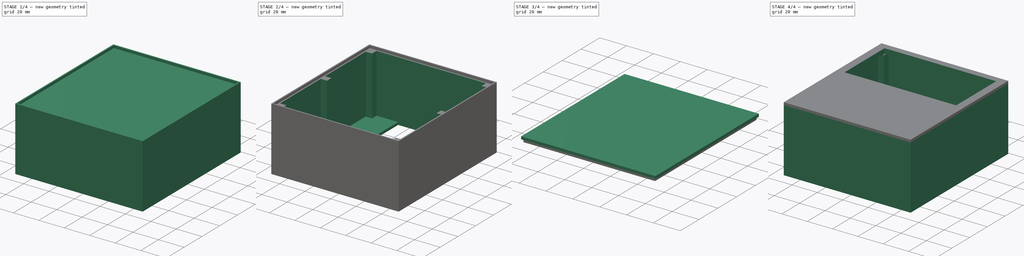
[diagram: build sequence overview — one tinted view per stage of 4, left to right]
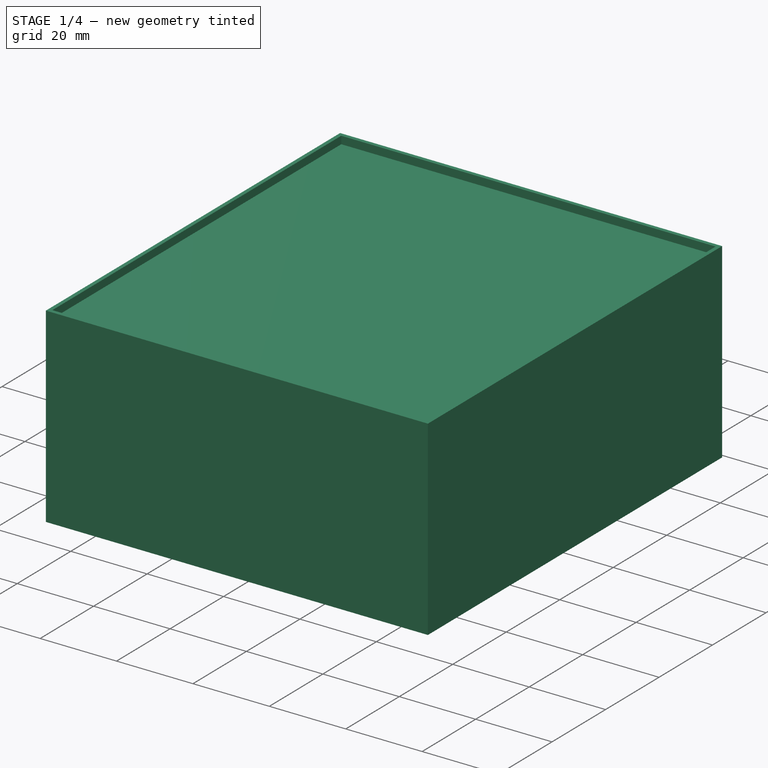
[diagram: stage 1 of 4 — iso view after this stage's code; geometry added in this stage tinted green]
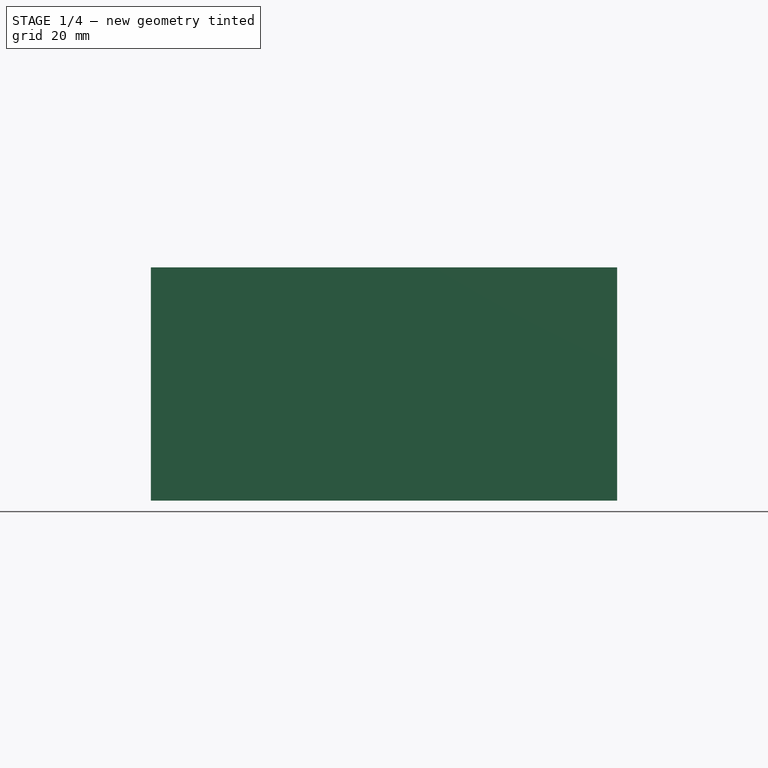
[diagram: stage 1 of 4 — front view after this stage's code; geometry added in this stage tinted green]
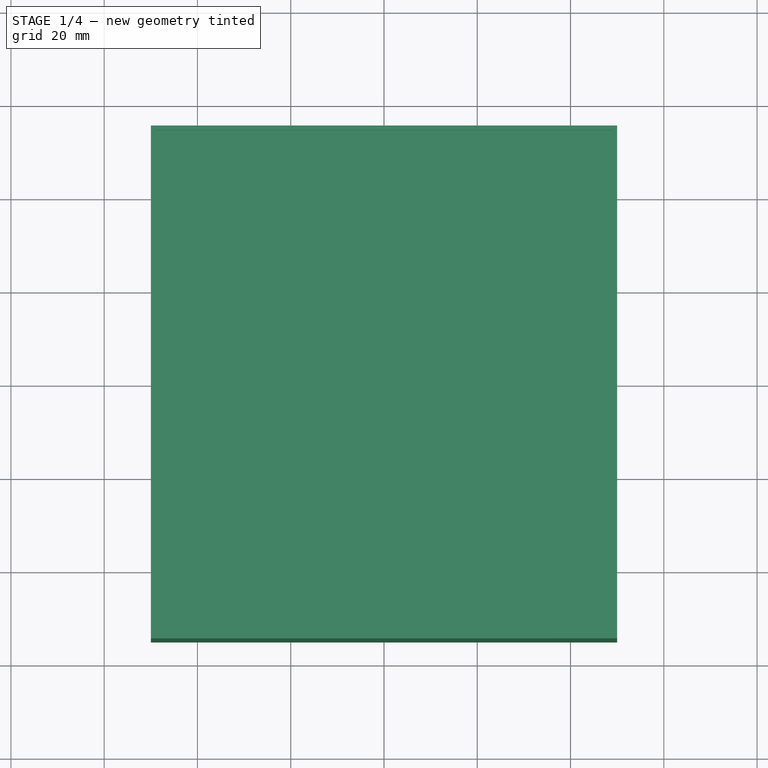
[diagram: stage 1 of 4 — top view after this stage's code; geometry added in this stage tinted green]
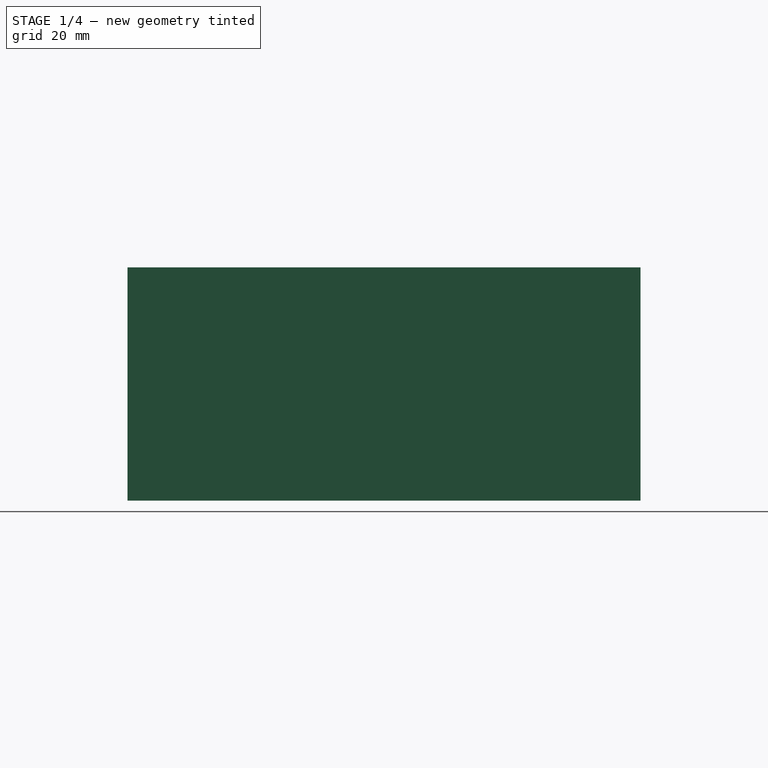
[diagram: stage 1 of 4 — right view after this stage's code; geometry added in this stage tinted green]
FCSTD DOCUMENT  (FreeCAD 0.16R)
Label: Sonoffcase
License: All rights reserved
LicenseURL: http://en.wikipedia.org/wiki/All_rights_reserved
objects: Sketcher::SketchObject×8, PartDesign::Pocket×5, PartDesign::Pad×3, Part::Cut×1
note: 25 computed .brp shape members not serialized (recipe doc carries the construction recipe); baked Part::Feature solids carry a one-line shape summary decoded from their .brp

FEATURE [Sketcher::SketchObject] Sketch
  sketch-geometry (4):
    g0: LineSegment StartX=-50 StartY=55 StartZ=0 EndX=50 EndY=55 EndZ=0
    g1: LineSegment StartX=50 StartY=55 StartZ=0 EndX=50 EndY=-55 EndZ=0
    g2: LineSegment StartX=50 StartY=-55 StartZ=0 EndX=-50 EndY=-55 EndZ=0
    g3: LineSegment StartX=-50 StartY=-55 StartZ=0 EndX=-50 EndY=55 EndZ=0
  constraints (11):
    c: Coincident(g0,g1)
    c: Coincident(g1,g2)
    c: Coincident(g2,g3)
    c: Coincident(g3,g0)
    c: Horizontal(g0)
    c: Horizontal(g2)
    c: Vertical(g1)
    c: Vertical(g3)
    c: DistanceX(g0,g0) = 100
    c: DistanceY(g3,g3) = 110
    c: Symmetric(g2,g0,g-1)
FEATURE [PartDesign::Pad] Pad
  Length = 50
  Length2 = 100
  Sketch = -> Sketch
  Type = 0
FEATURE [Sketcher::SketchObject] Sketch001
  Placement = pos=(0,0,50) rot=(0,0,1;0rad)
  Support = -> Pad [Face6]
  sketch-geometry (4):
    g0: LineSegment StartX=-49 StartY=54 StartZ=0 EndX=49 EndY=54 EndZ=0
    g1: LineSegment StartX=49 StartY=54 StartZ=0 EndX=49 EndY=-54 EndZ=0
    g2: LineSegment StartX=49 StartY=-54 StartZ=0 EndX=-49 EndY=-54 EndZ=0
    g3: LineSegment StartX=-49 StartY=-54 StartZ=0 EndX=-49 EndY=54 EndZ=0
  constraints (11):
    c: Coincident(g0,g1)
    c: Coincident(g1,g2)
    c: Coincident(g2,g3)
    c: Coincident(g3,g0)
    c: Horizontal(g0)
    c: Horizontal(g2)
    c: Vertical(g1)
    c: Vertical(g3)
    c: DistanceX(g0,g0) = 98
    c: DistanceY(g3,g3) = 108
    c: Symmetric(g2,g0,g-1)
FEATURE [PartDesign::Pocket] Pocket
  Length = 2
  Sketch = -> Sketch001
  Type = 0
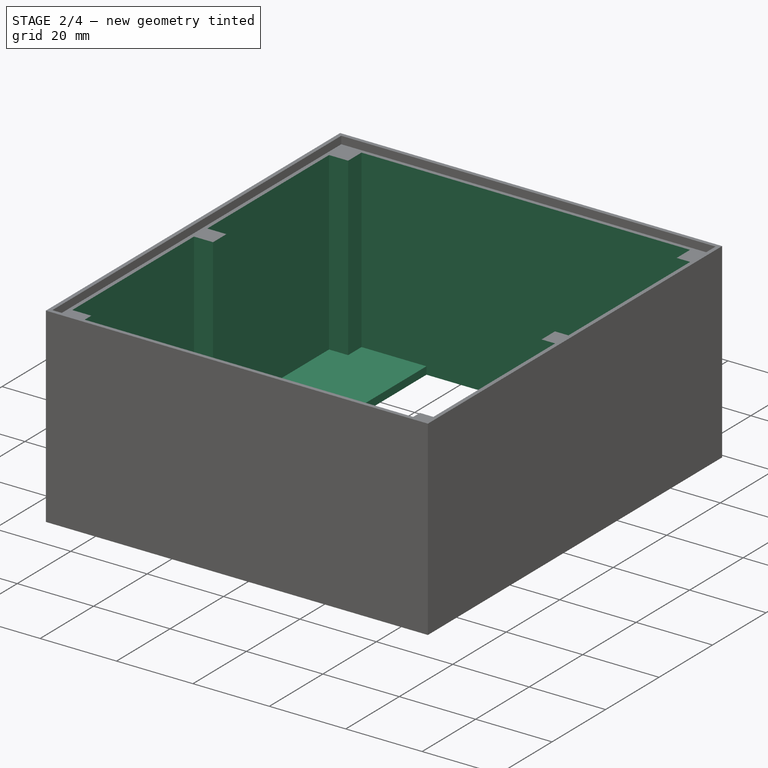
[diagram: stage 2 of 4 — iso view after this stage's code; geometry added in this stage tinted green]
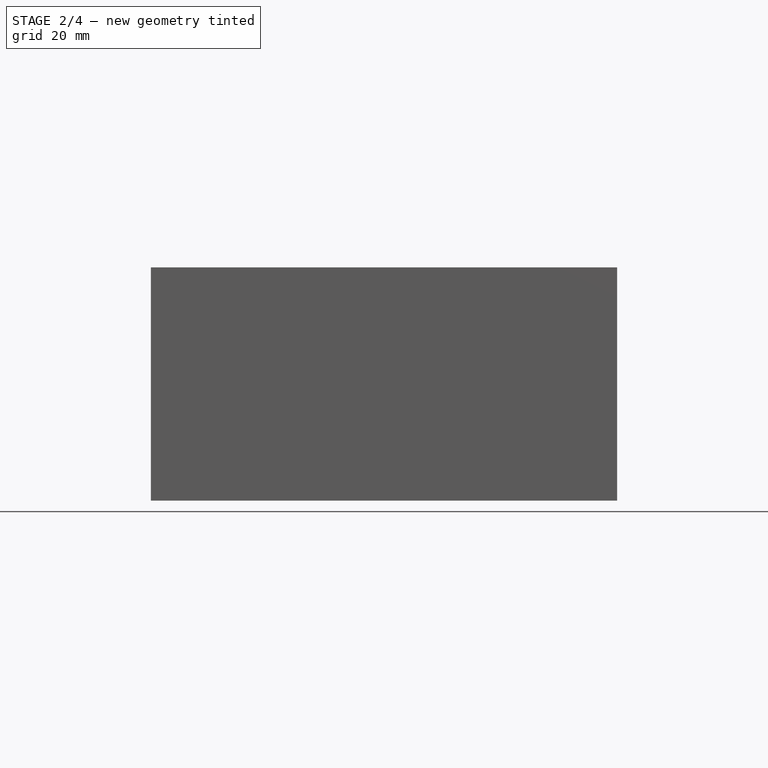
[diagram: stage 2 of 4 — front view after this stage's code; geometry added in this stage tinted green]
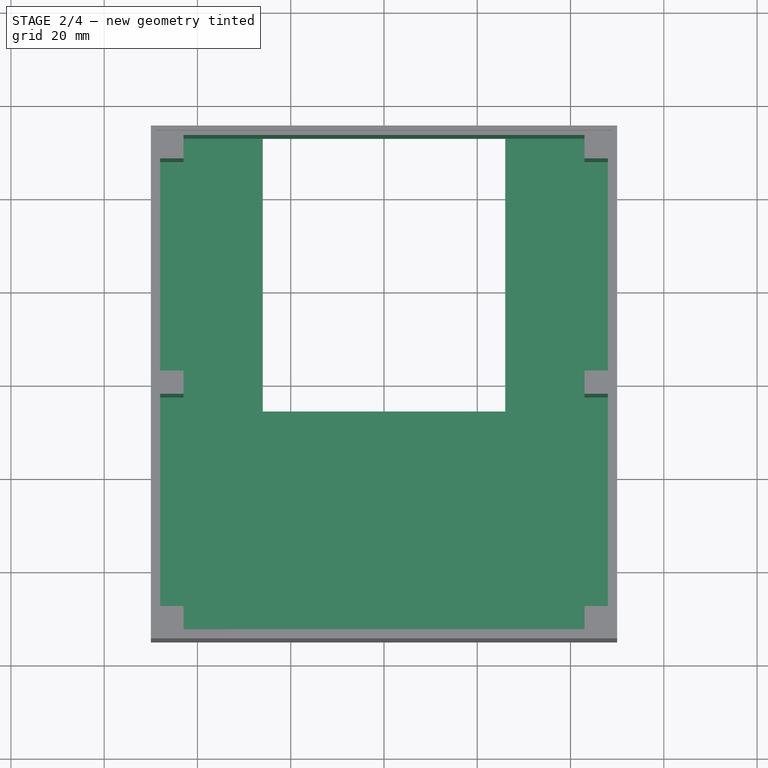
[diagram: stage 2 of 4 — top view after this stage's code; geometry added in this stage tinted green]
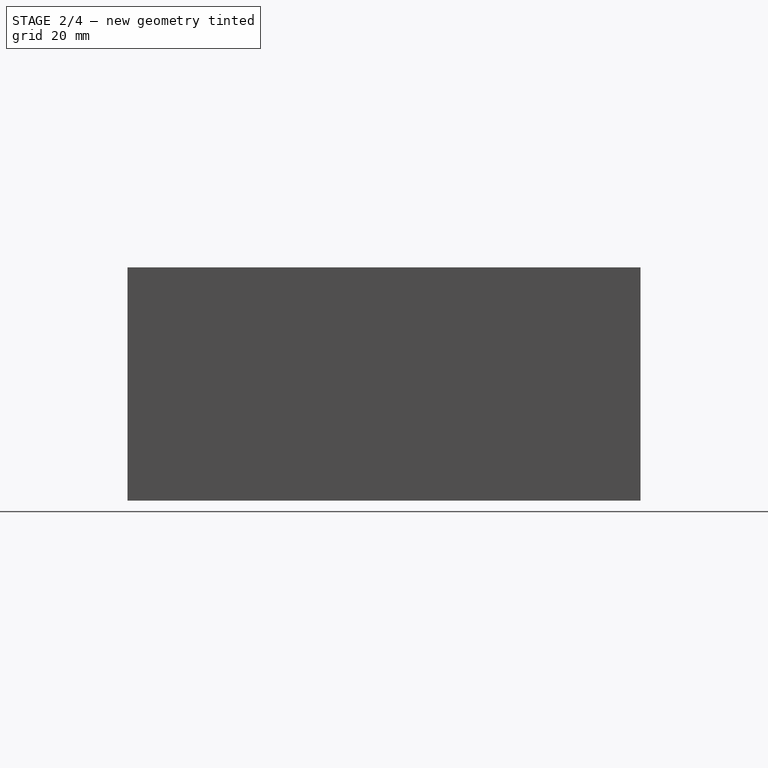
[diagram: stage 2 of 4 — right view after this stage's code; geometry added in this stage tinted green]
FEATURE [Sketcher::SketchObject] Sketch002
  Placement = pos=(0,0,48) rot=(0,0,1;0rad)
  Support = -> Pocket [Face11]
  sketch-geometry (27):
    g0: LineSegment StartX=-43 StartY=53 StartZ=0 EndX=43 EndY=53 EndZ=0
    g1: LineSegment StartX=48 StartY=48 StartZ=0 EndX=48 EndY=2.5 EndZ=0
    g2: LineSegment StartX=43 StartY=-53 StartZ=0 EndX=-43 EndY=-53 EndZ=0
    g3: LineSegment StartX=-48 StartY=-48 StartZ=0 EndX=-48 EndY=-2.5 EndZ=0
    g4: LineSegment StartX=-48 StartY=-48 StartZ=0 EndX=-43 EndY=-48 EndZ=0
    g5: LineSegment StartX=-43 StartY=-48 StartZ=0 EndX=-43 EndY=-53 EndZ=0
    g6: LineSegment StartX=-43 StartY=53 StartZ=0 EndX=-43 EndY=48 EndZ=0
    g7: LineSegment StartX=-43 StartY=48 StartZ=0 EndX=-48 EndY=48 EndZ=0
    g8: GeomPoint [constr] X=43 Y=53 Z=0
    g9: GeomPoint [constr] X=48 Y=48 Z=0
    g10: LineSegment StartX=43 StartY=53 StartZ=0 EndX=43 EndY=48 EndZ=0
    g11: LineSegment StartX=43 StartY=48 StartZ=0 EndX=48 EndY=48 EndZ=0
    g12: GeomPoint [constr] X=48 Y=-48 Z=0
    g13: LineSegment StartX=48 StartY=-48 StartZ=0 EndX=43 EndY=-48 EndZ=0
    g14: LineSegment StartX=43 StartY=-48 StartZ=0 EndX=43 EndY=-53 EndZ=0
    g15: GeomPoint [constr] X=48 Y=2.5 Z=0
    g16: GeomPoint [constr] X=48 Y=-2.5 Z=0
    g17: LineSegment StartX=48 StartY=2.5 StartZ=0 EndX=43 EndY=2.5 EndZ=0
    g18: LineSegment StartX=43 StartY=2.5 StartZ=0 EndX=43 EndY=-2.5 EndZ=0
    g19: LineSegment StartX=43 StartY=-2.5 StartZ=0 EndX=48 EndY=-2.5 EndZ=0
    g20: LineSegment StartX=48 StartY=-2.5 StartZ=0 EndX=48 EndY=-48 EndZ=0
    g21: GeomPoint [constr] X=-48 Y=2.5 Z=0
    g22: GeomPoint [constr] X=-48 Y=-2.5 Z=0
    g23: LineSegment StartX=-48 StartY=2.5 StartZ=0 EndX=-43 EndY=2.5 EndZ=0
    g24: LineSegment StartX=-43 StartY=2.5 StartZ=0 EndX=-43 EndY=-2.5 EndZ=0
    g25: LineSegment StartX=-43 StartY=-2.5 StartZ=0 EndX=-48 EndY=-2.5 EndZ=0
    g26: LineSegment StartX=-48 StartY=2.5 StartZ=0 EndX=-48 EndY=48 EndZ=0
  constraints (66):
    c: Horizontal(g0)
    c: Horizontal(g2)
    c: Vertical(g3)
    c: Coincident(g10,g8)
    c: Vertical(g10)
    c: Coincident(g10,g11)
    c: Coincident(g11,g9)
    c: Horizontal(g11)
    c: Coincident(g13,g12)
    c: Horizontal(g13)
    c: Coincident(g13,g14)
    c: DistanceX(g26,g1) = 96
    c: DistanceY(g2,g0) = 106
    c: Coincident(g14,g2)
    c: Vertical(g14)
    c: Symmetric(g6,g10,g-2)
    c: Symmetric(g6,g13,g-1)
    c: Equal(g6,g7)
    c: Equal(g7,g10)
    c: Equal(g10,g11)
    c: Equal(g11,g4)
    c: Equal(g4,g5)
    c: Equal(g5,g14)
    c: Equal(g14,g13)
    c: DistanceX(g7,g7) = 5
    c: Coincident(g0,g8)
    c: Coincident(g9,g1)
    c: Coincident(g26,g7)
    c: Coincident(g6,g0)
    c: Coincident(g6,g7)
    c: Horizontal(g7)
    c: Coincident(g3,g4)
    c: Coincident(g4,g5)
    c: Horizontal(g4)
    c: Coincident(g5,g2)
    c: Vertical(g5)
    c: Coincident(g20,g12)
    c: Coincident(g17,g15)
    c: Horizontal(g17)
    c: Coincident(g17,g18)
    c: Vertical(g18)
    c: Coincident(g18,g19)
    c: Coincident(g19,g16)
    c: Horizontal(g19)
    c: Coincident(g16,g20)
    c: Coincident(g23,g21)
    c: Horizontal(g23)
    c: Coincident(g23,g24)
    c: Vertical(g24)
    c: Coincident(g24,g25)
    c: Coincident(g25,g22)
    c: Horizontal(g25)
    c: PointOnObject(g3,g25)
    c: PointOnObject(g26,g23)
    c: Tangent(g3,g26)
    c: Equal(g23,g24)
    c: Equal(g24,g25)
    c: Equal(g25,g17)
    c: Equal(g17,g18)
    c: Equal(g18,g19)
    c: DistanceX(g17,g17) = 5
    c: Coincident(g1,g15)
    c: Symmetric(g23,g18,g-1)
    c: Symmetric(g24,g17,g-1)
    c: Symmetric(g1,g16,g-1)
    c: Coincident(g21,g26)
FEATURE [PartDesign::Pocket] Pocket001
  Length = 46
  Sketch = -> Sketch002
  Type = 0
FEATURE [Sketcher::SketchObject] Sketch003
  Placement = pos=(0,0,2) rot=(0,0,1;0rad)
  Support = -> Pocket001 [Face32]
  sketch-geometry (4):
    g0: LineSegment StartX=-26 StartY=53 StartZ=0 EndX=26 EndY=53 EndZ=0
    g1: LineSegment StartX=26 StartY=53 StartZ=0 EndX=26 EndY=-5.5 EndZ=0
    g2: LineSegment StartX=26 StartY=-5.5 StartZ=0 EndX=-26 EndY=-5.5 EndZ=0
    g3: LineSegment StartX=-26 StartY=-5.5 StartZ=0 EndX=-26 EndY=53 EndZ=0
  constraints (12):
    c: Coincident(g0,g1)
    c: Coincident(g1,g2)
    c: Coincident(g2,g3)
    c: Coincident(g3,g0)
    c: Horizontal(g0)
    c: Horizontal(g2)
    c: Vertical(g1)
    c: Vertical(g3)
    c: DistanceX(g0,g0) = 52
    c: DistanceY(g1,g1) = 58.5
    c: DistanceY(g-1,g0) = 53
    c: Symmetric(g2,g1,g-2)
FEATURE [PartDesign::Pocket] Pocket002
  Length = 5
  Sketch = -> Sketch003
  Type = 0
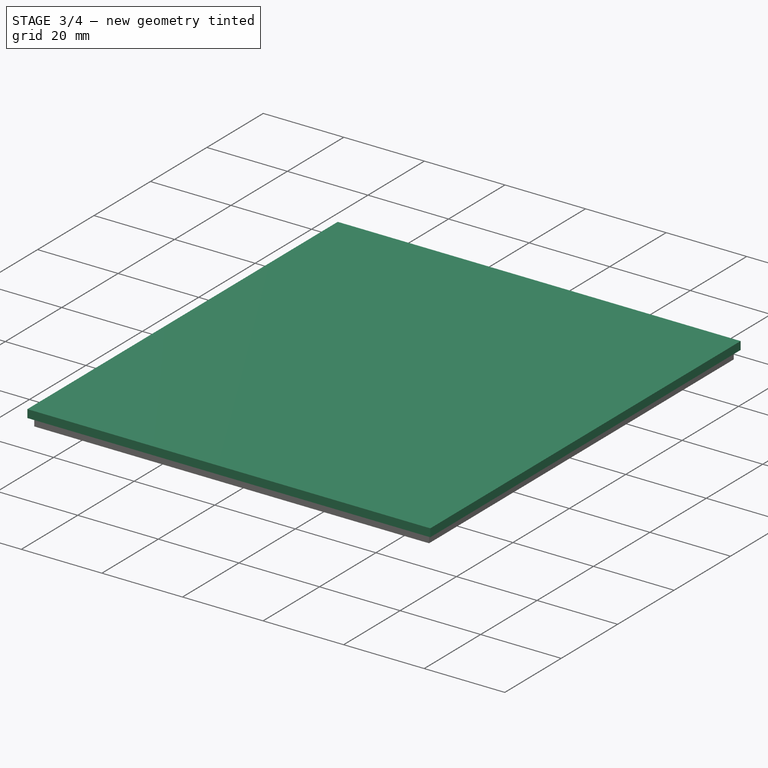
[diagram: stage 3 of 4 — iso view after this stage's code; geometry added in this stage tinted green]
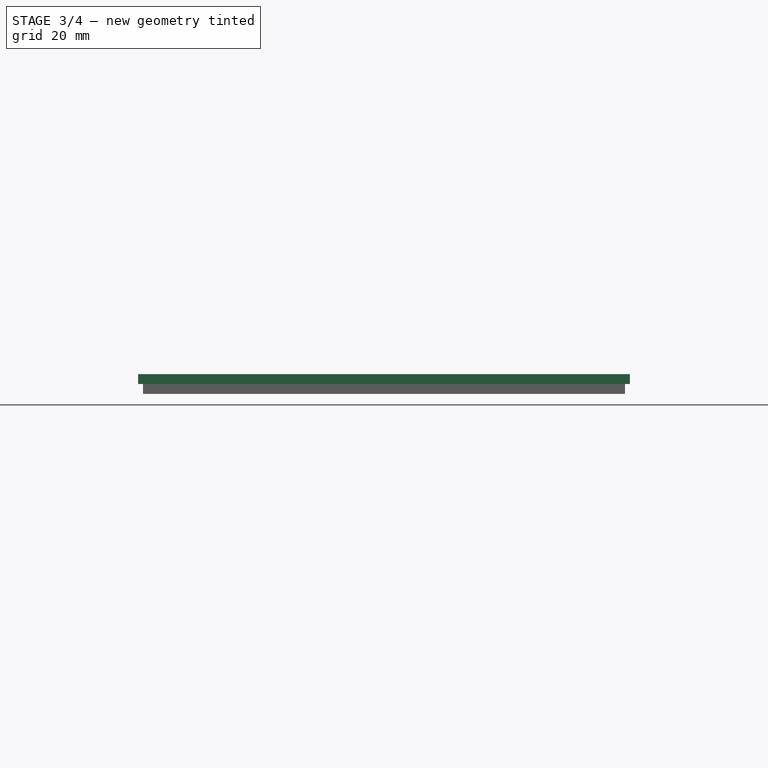
[diagram: stage 3 of 4 — front view after this stage's code; geometry added in this stage tinted green]
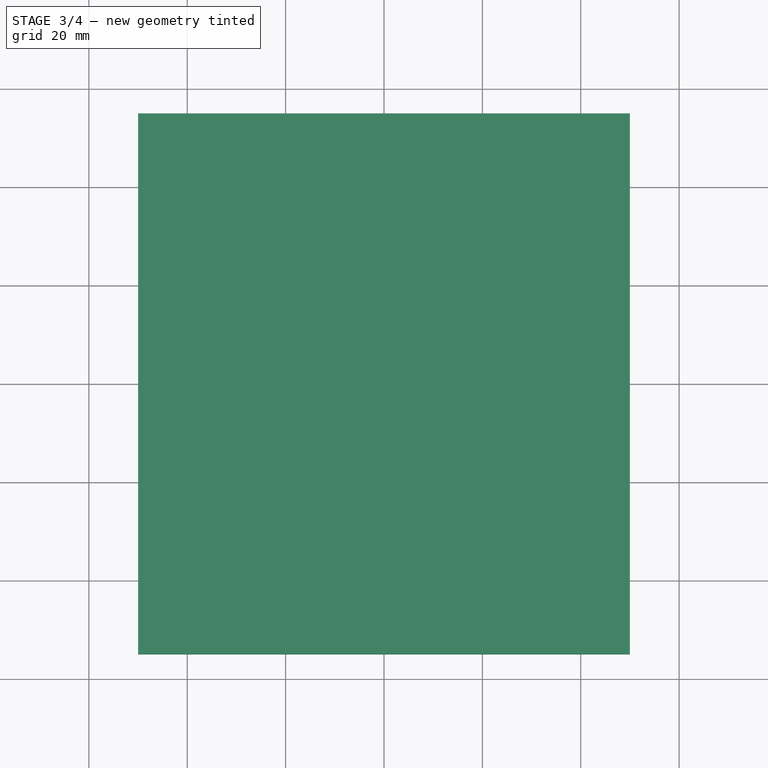
[diagram: stage 3 of 4 — top view after this stage's code; geometry added in this stage tinted green]
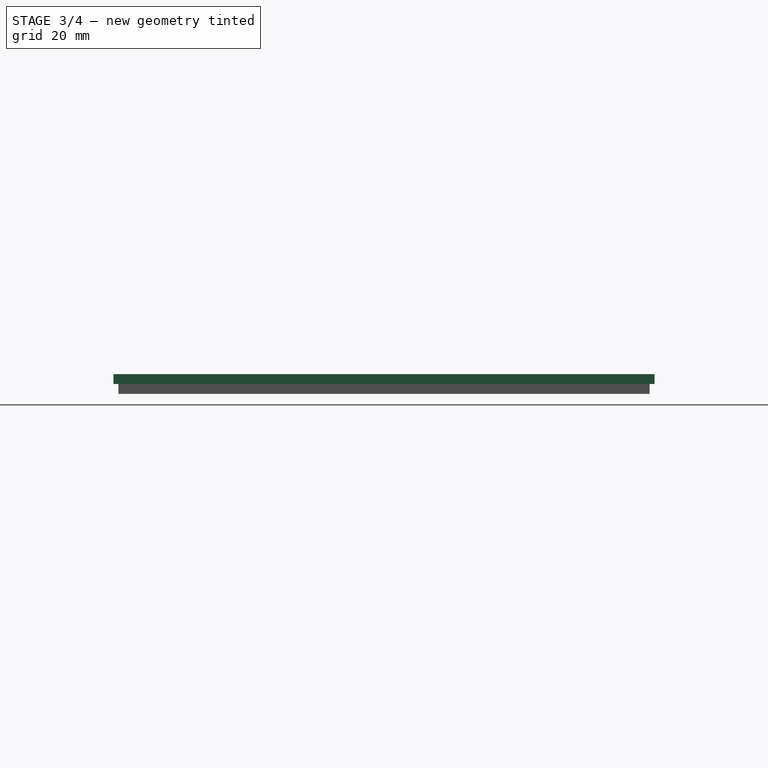
[diagram: stage 3 of 4 — right view after this stage's code; geometry added in this stage tinted green]
FEATURE [Sketcher::SketchObject] Sketch004
  Placement = pos=(0,0,2) rot=(0,0,1;0rad)
  Support = -> Pocket002 [Face16]
  sketch-geometry (8):
    g0: LineSegment StartX=-47.5 StartY=-6 StartZ=0 EndX=47.5 EndY=-6 EndZ=0
    g1: LineSegment StartX=47.5 StartY=-6 StartZ=0 EndX=47.5 EndY=-50 EndZ=0
    g2: LineSegment StartX=47.5 StartY=-50 StartZ=0 EndX=-47.5 EndY=-50 EndZ=0
    g3: LineSegment StartX=-47.5 StartY=-50 StartZ=0 EndX=-47.5 EndY=-6 EndZ=0
    g4: LineSegment StartX=-44.25 StartY=-8 StartZ=0 EndX=44.25 EndY=-8 EndZ=0
    g5: LineSegment StartX=44.25 StartY=-8 StartZ=0 EndX=44.25 EndY=-48 EndZ=0
    g6: LineSegment StartX=44.25 StartY=-48 StartZ=0 EndX=-44.25 EndY=-48 EndZ=0
    g7: LineSegment StartX=-44.25 StartY=-48 StartZ=0 EndX=-44.25 EndY=-8 EndZ=0
  constraints (24):
    c: Coincident(g0,g1)
    c: Coincident(g1,g2)
    c: Coincident(g2,g3)
    c: Coincident(g3,g0)
    c: Horizontal(g0)
    c: Horizontal(g2)
    c: Vertical(g1)
    c: Vertical(g3)
    c: Coincident(g4,g5)
    c: Coincident(g5,g6)
    c: Coincident(g6,g7)
    c: Coincident(g7,g4)
    c: Horizontal(g4)
    c: Horizontal(g6)
    c: Vertical(g5)
    c: Vertical(g7)
    c: DistanceX(g0,g0) = 95
    c: DistanceX(g4,g4) = 88.5
    c: DistanceY(g5,g5) = 40
    c: DistanceY(g1,g1) = 44
    c: Symmetric(g0,g0,g-2)
    c: Symmetric(g4,g4,g-2)
    c: DistanceY(g4,g0) = 2
    c: DistanceY(g2,g-1) = 50
FEATURE [PartDesign::Pad] Pad001
  Length = 5
  Length2 = 100
  Sketch = -> Sketch004
  Type = 0
FEATURE [Sketcher::SketchObject] Sketch005
  Placement = pos=(0,0,50) rot=(0,0,1;0rad)
  Support = -> Pad001 [Face5]
  sketch-geometry (4):
    g0: LineSegment StartX=-50 StartY=55 StartZ=0 EndX=50 EndY=55 EndZ=0
    g1: LineSegment StartX=50 StartY=55 StartZ=0 EndX=50 EndY=-55 EndZ=0
    g2: LineSegment StartX=50 StartY=-55 StartZ=0 EndX=-50 EndY=-55 EndZ=0
    g3: LineSegment StartX=-50 StartY=-55 StartZ=0 EndX=-50 EndY=55 EndZ=0
  constraints (11):
    c: Coincident(g0,g1)
    c: Coincident(g1,g2)
    c: Coincident(g2,g3)
    c: Coincident(g3,g0)
    c: Horizontal(g0)
    c: Horizontal(g2)
    c: Vertical(g1)
    c: Vertical(g3)
    c: DistanceX(g0,g0) = 100
    c: DistanceY(g3,g3) = 110
    c: Symmetric(g2,g0,g-1)
FEATURE [PartDesign::Pad] Pad002
  Length = 4
  Length2 = 100
  Midplane = true
  Sketch = -> Sketch005
  Type = 0
FEATURE [Part::Cut] Cut
  Base = -> Pad002
  Tool = -> Pad001
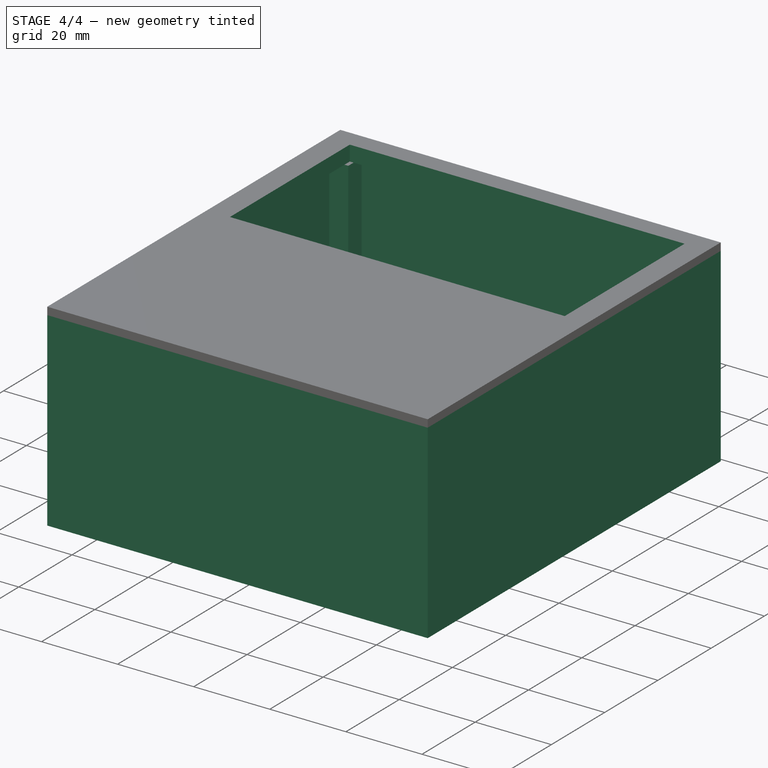
[diagram: stage 4 of 4 — iso view after this stage's code; geometry added in this stage tinted green]
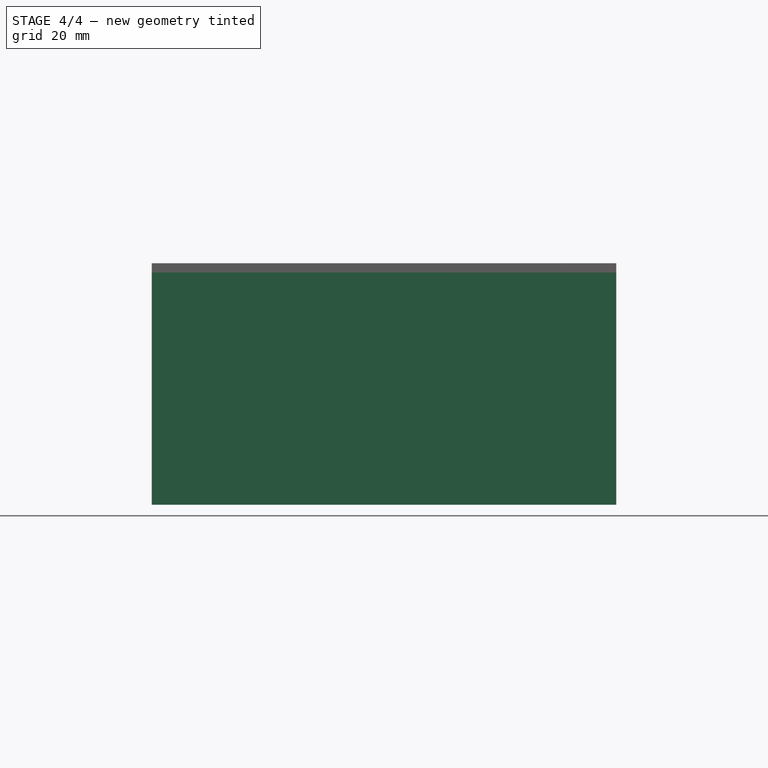
[diagram: stage 4 of 4 — front view after this stage's code; geometry added in this stage tinted green]
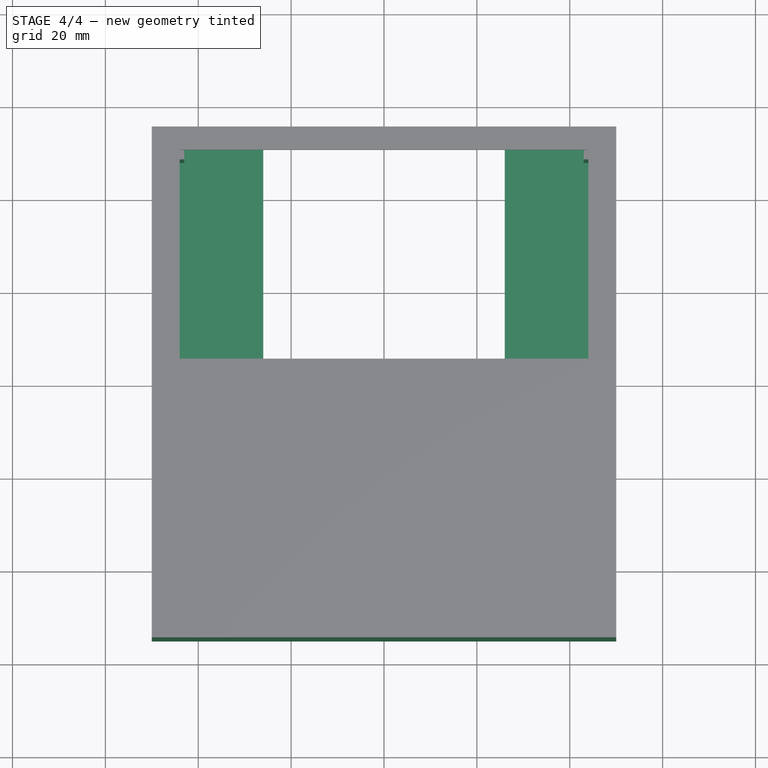
[diagram: stage 4 of 4 — top view after this stage's code; geometry added in this stage tinted green]
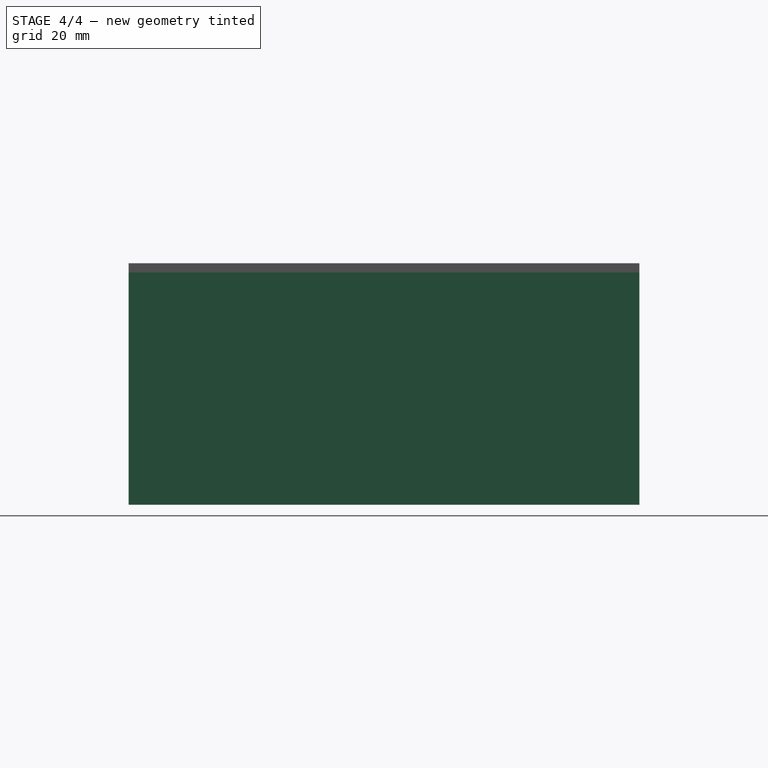
[diagram: stage 4 of 4 — right view after this stage's code; geometry added in this stage tinted green]
FEATURE [Sketcher::SketchObject] Sketch006
  Placement = pos=(0,0,48) rot=(0,0,1;0rad)
  Support = -> Pad001 [Face17]
  sketch-geometry (7):
    g0: Circle CenterX=-46 CenterY=51 CenterZ=0 NormalX=0 NormalY=0 NormalZ=1 Radius=1
    g1: Circle CenterX=-46 CenterY=-51 CenterZ=0 NormalX=0 NormalY=0 NormalZ=1 Radius=1
    g2: Circle CenterX=46 CenterY=51 CenterZ=0 NormalX=0 NormalY=0 NormalZ=1 Radius=1
    g3: Circle CenterX=46 CenterY=-51 CenterZ=0 NormalX=0 NormalY=0 NormalZ=1 Radius=1
    g4: LineSegment [constr] StartX=-46 StartY=51 StartZ=0 EndX=46 EndY=51 EndZ=0
    g5: LineSegment [constr] StartX=-46 StartY=51 StartZ=0 EndX=-46 EndY=-51 EndZ=0
    g6: LineSegment [constr] StartX=46 StartY=51 StartZ=0 EndX=46 EndY=-51 EndZ=0
  constraints (17):
    c: Radius(g0) = 1
    c: Radius(g3) = 1
    c: Radius(g2) = 1
    c: Radius(g1) = 1
    c: Coincident(g4,g0)
    c: Coincident(g4,g2)
    c: Horizontal(g4)
    c: Coincident(g5,g0)
    c: Coincident(g5,g1)
    c: Vertical(g5)
    c: Coincident(g6,g3)
    c: Vertical(g6)
    c: DistanceX(g4,g4) = 92
    c: Coincident(g2,g6)
    c: Equal(g6,g5)
    c: DistanceY(g5,g5) = 102
    c: Symmetric(g0,g3,g-1)
FEATURE [PartDesign::Pocket] Pocket003
  Length = 5
  Sketch = -> Sketch006
  Type = 0
FEATURE [Sketcher::SketchObject] Sketch007
  Placement = pos=(0,0,52) rot=(0,0,1;0rad)
  Support = -> Cut [Face5]
  sketch-geometry (4):
    g0: LineSegment StartX=-44 StartY=50 StartZ=0 EndX=44 EndY=50 EndZ=0
    g1: LineSegment StartX=44 StartY=50 StartZ=0 EndX=44 EndY=5 EndZ=0
    g2: LineSegment StartX=44 StartY=5 StartZ=0 EndX=-44 EndY=5 EndZ=0
    g3: LineSegment StartX=-44 StartY=5 StartZ=0 EndX=-44 EndY=50 EndZ=0
  constraints (12):
    c: Coincident(g0,g1)
    c: Coincident(g1,g2)
    c: Coincident(g2,g3)
    c: Coincident(g3,g0)
    c: Horizontal(g0)
    c: Horizontal(g2)
    c: Vertical(g1)
    c: Vertical(g3)
    c: DistanceX(g0,g0) = 88
    c: DistanceY(g3,g3) = 45
    c: DistanceY(g-1,g1) = 5
    c: Symmetric(g0,g0,g-2)
FEATURE [PartDesign::Pocket] Pocket004
  Length = 5
  Sketch = -> Sketch007
  Type = 0
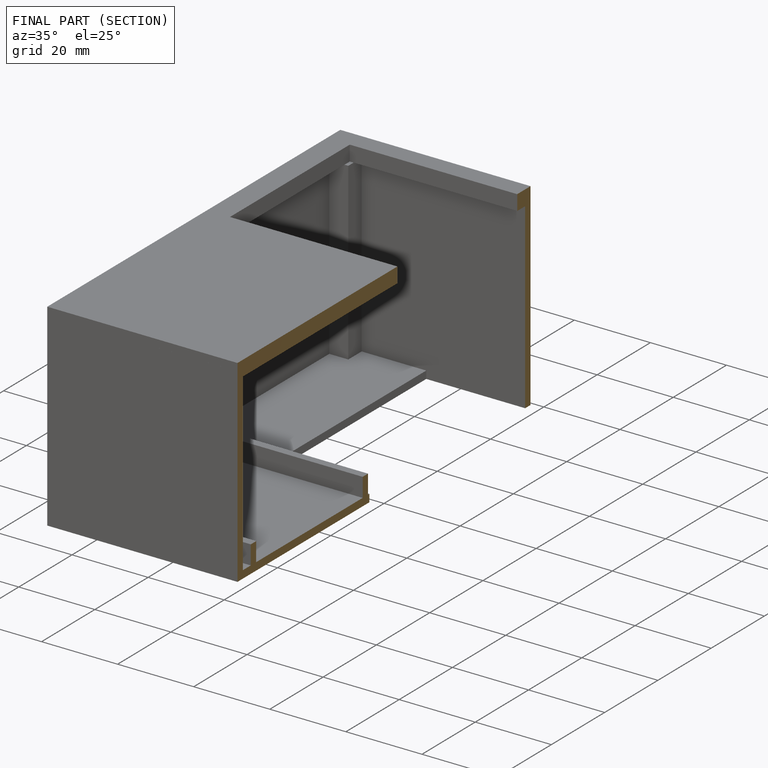
[diagram: finished part — half-section view (interior)]
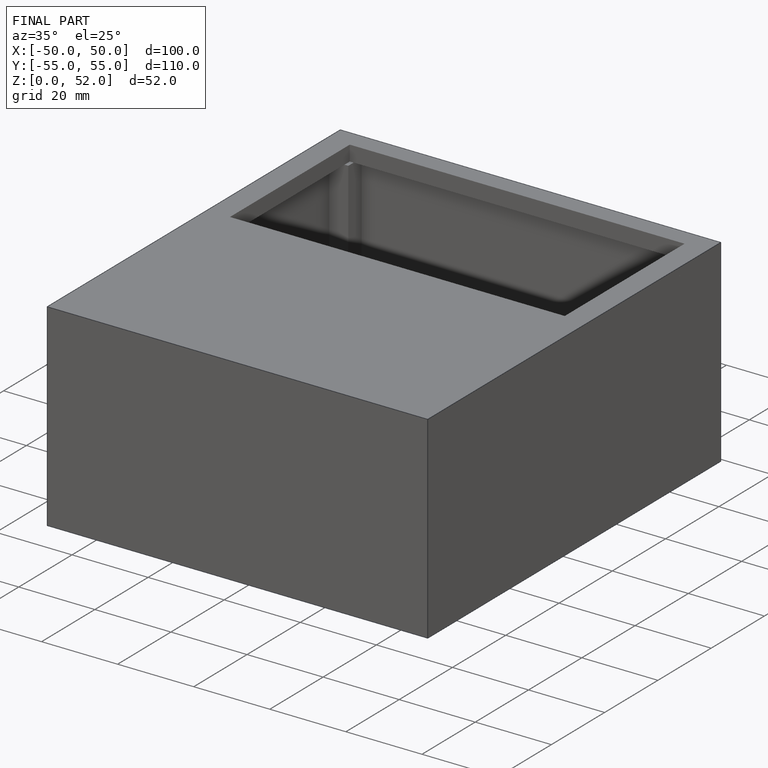
[diagram: finished part — iso view with bounding-box wireframe]
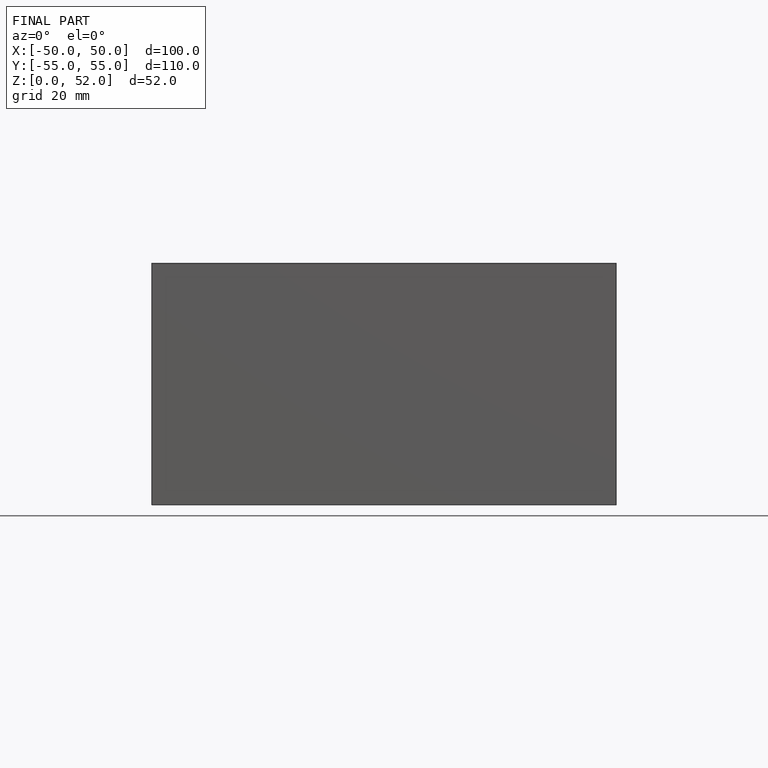
[diagram: finished part — front view with bounding-box wireframe]
